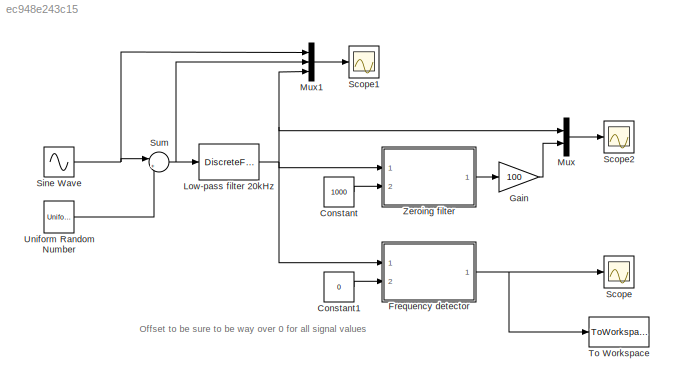
MODEL slx_ec948e243c15
KIND model
CONFIG AbsTol = auto
CONFIG EnableMultiTasking = off
CONFIG FixedStep = auto
CONFIG MaxStep = auto
CONFIG MinStep = auto
CONFIG RelTol = 1e-3
CONFIG SampleTimeConstraint = Unconstrained
CONFIG Solver = VariableStepAuto
CONFIG SolverName = VariableStepAuto
CONFIG StartTime = 0.0
CONFIG StopTime = 0.05
BLOCK [Constant] Constant
  Value = 1000
BLOCK [Constant] Constant1
  Value = 0
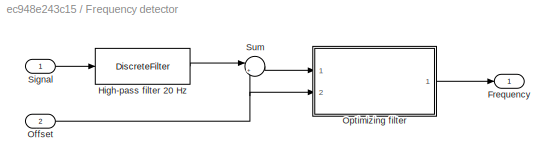
BLOCK [SubSystem] Frequency detector
  Ports = [2, 1]
  RequestExecContextInheritance = off
BLOCK [Outport] Frequency detector/Frequency
  IconDisplay = Port number
BLOCK [DiscreteFilter] Frequency detector/High-pass filter 20 Hz
  Denominator = [1 -0.9974]
  InputPortMap = u0
  Numerator = [0.9987 -0.9987]
  Ports = [1, 1]
  SampleTime = Ts
BLOCK [Inport] Frequency detector/Offset
  IconDisplay = Port number
  Port = 2
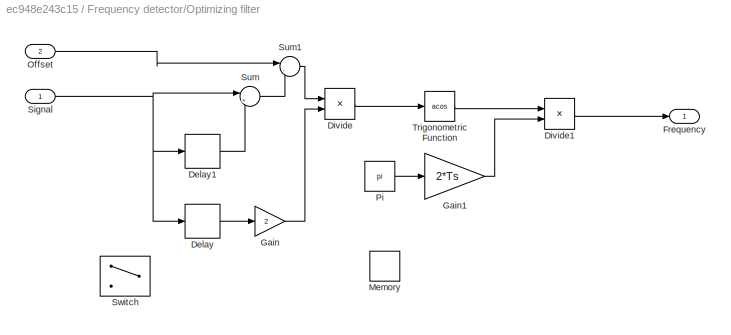
BLOCK [SubSystem] Frequency detector/Optimizing filter
  Ports = [2, 1]
  RequestExecContextInheritance = off
BLOCK [Delay] Frequency detector/Optimizing filter/Delay
  DelayLength = 1
  InputPortMap = u0
  Ports = [1, 1]
  SampleTime = Ts
BLOCK [Delay] Frequency detector/Optimizing filter/Delay1
  InputPortMap = u0
  Ports = [1, 1]
  SampleTime = Ts
BLOCK [Product] Frequency detector/Optimizing filter/Divide
  InputSameDT = off
  Inputs = */
  OutDataTypeStr = Inherit: Inherit via internal rule
  Ports = [2, 1]
  RndMeth = Floor
  SaturateOnIntegerOverflow = off
BLOCK [Product] Frequency detector/Optimizing filter/Divide1
  InputSameDT = off
  Inputs = */
  OutDataTypeStr = Inherit: Inherit via internal rule
  Ports = [2, 1]
  RndMeth = Floor
  SaturateOnIntegerOverflow = off
BLOCK [Outport] Frequency detector/Optimizing filter/Frequency
  IconDisplay = Port number
BLOCK [Gain] Frequency detector/Optimizing filter/Gain
  Gain = 2
  OutDataTypeStr = Inherit: Inherit via internal rule
  ParamDataTypeStr = Inherit: Inherit via internal rule
  SaturateOnIntegerOverflow = off
BLOCK [Gain] Frequency detector/Optimizing filter/Gain1
  Gain = 2*Ts
  OutDataTypeStr = Inherit: Inherit via internal rule
  ParamDataTypeStr = Inherit: Inherit via internal rule
  SaturateOnIntegerOverflow = off
BLOCK [Memory] Frequency detector/Optimizing filter/Memory
BLOCK [Inport] Frequency detector/Optimizing filter/Offset
  IconDisplay = Port number
  Port = 2
BLOCK [Constant] Frequency detector/Optimizing filter/Pi
  Value = pi
BLOCK [Inport] Frequency detector/Optimizing filter/Signal
  IconDisplay = Port number
BLOCK [Sum] Frequency detector/Optimizing filter/Sum
  IconShape = round
  InputSameDT = off
  Inputs = |++
  OutDataTypeStr = Inherit: Inherit via internal rule
  Ports = [2, 1]
  SaturateOnIntegerOverflow = off
BLOCK [Sum] Frequency detector/Optimizing filter/Sum1
  IconShape = round
  InputSameDT = off
  Inputs = |-+
  OutDataTypeStr = Inherit: Inherit via internal rule
  Ports = [2, 1]
  SaturateOnIntegerOverflow = off
BLOCK [Switch] Frequency detector/Optimizing filter/Switch
  Criteria = u2 > Threshold
  InputSameDT = off
  SaturateOnIntegerOverflow = off
BLOCK [Trigonometry] Frequency detector/Optimizing filter/Trigonometric Function
  Operator = acos
  Ports = [1, 1]
BLOCK [Inport] Frequency detector/Signal
  IconDisplay = Port number
BLOCK [Sum] Frequency detector/Sum
  IconShape = round
  InputSameDT = off
  Inputs = |++
  OutDataTypeStr = Inherit: Inherit via internal rule
  Ports = [2, 1]
  SaturateOnIntegerOverflow = off
BLOCK [Gain] Gain
  Gain = 100
  OutDataTypeStr = Inherit: Inherit via internal rule
  ParamDataTypeStr = Inherit: Inherit via internal rule
  SaturateOnIntegerOverflow = off
BLOCK [DiscreteFilter] Low-pass filter 20kHz
  Denominator = [1 1.2796 0.4776]
  InputPortMap = u0
  Numerator = [0.6893 1.3786 0.6893]
  Ports = [1, 1]
BLOCK [Mux] Mux
  DisplayOption = bar
  Inputs = 2
  Ports = [2, 1]
BLOCK [Mux] Mux1
  DisplayOption = bar
  Inputs = 3
  Ports = [3, 1]
BLOCK [Scope] Scope
  Floating = off
  NumInputPorts = 1
  Ports = [1]
  ScopeSpecificationString = Simulink.scopes.TimeScopeBlockCfg('CurrentConfiguration', extmgr.ConfigurationSet(extmgr.Configuration('Core','General UI',true),extmgr.Configuration('Core','Source UI',true),extmgr.Configuration('Sources','WiredSimulink',true),extmgr.Configuration('Visuals','Time Domain',true,'SerializedDisplays',{struct('MinYLimReal','-3000.00000','MaxYLimReal','27000.00000','YLabelReal','','MinYLimMag','  0.000...<+1467ch>
BLOCK [Scope] Scope1
  Floating = off
  NumInputPorts = 1
  Ports = [1]
  ScopeSpecificationString = Simulink.scopes.TimeScopeBlockCfg('CurrentConfiguration', extmgr.ConfigurationSet(extmgr.Configuration('Core','General UI',true),extmgr.Configuration('Core','Source UI',true),extmgr.Configuration('Sources','WiredSimulink',true,'DataLoggingVariableName','ScopeData1'),extmgr.Configuration('Visuals','Time Domain',true,'SerializedDisplays',{struct('MinYLimReal','0.1391','MaxYLimReal','3.7856','YLabelR...<+1463ch>
BLOCK [Scope] Scope2
  Floating = off
  NumInputPorts = 1
  Ports = [1]
  ScopeSpecificationString = Simulink.scopes.TimeScopeBlockCfg('CurrentConfiguration', extmgr.ConfigurationSet(extmgr.Configuration('Core','General UI',true),extmgr.Configuration('Core','Source UI',true),extmgr.Configuration('Sources','WiredSimulink',true,'DataLoggingVariableName','ScopeData2'),extmgr.Configuration('Visuals','Time Domain',true,'SerializedDisplays',{struct('MinYLimReal','-173.81463','MaxYLimReal','168.18559','...<+1477ch>
BLOCK [Sin] Sine Wave
  Bias = 2
  Frequency = 2*pi*1000
  Ports = [0, 1]
  SampleTime = 0
BLOCK [Sum] Sum
  IconShape = round
  InputSameDT = off
  Inputs = |++
  OutDataTypeStr = Inherit: Inherit via internal rule
  Ports = [2, 1]
  SaturateOnIntegerOverflow = off
BLOCK [ToWorkspace] To Workspace
  FixptAsFi = on
  MaxDataPoints = inf
  Ports = [1]
  SampleTime = -1
  Save2DSignal = 3-D array (concatenate along third dimension)
  SaveFormat = Timeseries
  VariableName = freq
BLOCK [UniformRandomNumber] Uniform Random Number
  Maximum = 0.1
  Minimum = -0.1
  SampleTime = Ts*3
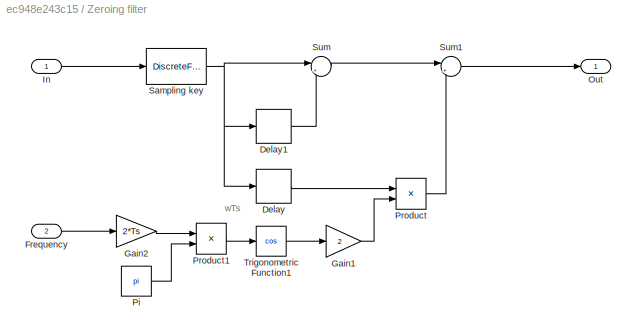
BLOCK [SubSystem] Zeroing filter
  Ports = [2, 1]
  RequestExecContextInheritance = off
BLOCK [Delay] Zeroing filter/Delay
  DelayLength = 1
  InputPortMap = u0
  Ports = [1, 1]
  SampleTime = Ts
BLOCK [Delay] Zeroing filter/Delay1
  InputPortMap = u0
  Ports = [1, 1]
  SampleTime = Ts
BLOCK [Inport] Zeroing filter/Frequency
  IconDisplay = Port number
  Port = 2
BLOCK [Gain] Zeroing filter/Gain1
  Gain = 2
  OutDataTypeStr = Inherit: Inherit via internal rule
  ParamDataTypeStr = Inherit: Inherit via internal rule
  SaturateOnIntegerOverflow = off
BLOCK [Gain] Zeroing filter/Gain2
  Gain = 2*Ts
  OutDataTypeStr = Inherit: Inherit via internal rule
  ParamDataTypeStr = Inherit: Inherit via internal rule
  SaturateOnIntegerOverflow = off
BLOCK [Inport] Zeroing filter/In
  IconDisplay = Port number
BLOCK [Outport] Zeroing filter/Out
  IconDisplay = Port number
BLOCK [Constant] Zeroing filter/Pi
  Value = pi
BLOCK [Product] Zeroing filter/Product
  InputSameDT = off
  OutDataTypeStr = Inherit: Inherit via internal rule
  Ports = [2, 1]
  RndMeth = Floor
  SaturateOnIntegerOverflow = off
BLOCK [Product] Zeroing filter/Product1
  InputSameDT = off
  OutDataTypeStr = Inherit: Inherit via internal rule
  Ports = [2, 1]
  RndMeth = Floor
  SaturateOnIntegerOverflow = off
BLOCK [DiscreteFilter] Zeroing filter/Sampling key
  Denominator = 1
  InputPortMap = u0
  Ports = [1, 1]
  SampleTime = Ts
BLOCK [Sum] Zeroing filter/Sum
  IconShape = round
  InputSameDT = off
  Inputs = |++
  OutDataTypeStr = Inherit: Inherit via internal rule
  Ports = [2, 1]
  SaturateOnIntegerOverflow = off
BLOCK [Sum] Zeroing filter/Sum1
  IconShape = round
  InputSameDT = off
  Inputs = |+-
  OutDataTypeStr = Inherit: Inherit via internal rule
  Ports = [2, 1]
  SaturateOnIntegerOverflow = off
BLOCK [Trigonometry] Zeroing filter/Trigonometric Function1
  Operator = cos
  Ports = [1, 1]
ANNOTATION (root): Offset to be sure to be way over 0 for all signal values
ANNOTATION Zeroing filter: wTs
LINE Constant1:1 -> Frequency detector:2
LINE Constant:1 -> Zeroing filter:2
LINE Frequency detector/High-pass filter 20 Hz:1 -> Frequency detector/Sum:1
NET Frequency detector/Offset:1 -> Frequency detector/Optimizing filter:2, Frequency detector/Sum:2
LINE Frequency detector/Optimizing filter/Delay1:1 -> Frequency detector/Optimizing filter/Sum:2
LINE Frequency detector/Optimizing filter/Delay:1 -> Frequency detector/Optimizing filter/Gain:1
LINE Frequency detector/Optimizing filter/Divide1:1 -> Frequency detector/Optimizing filter/Frequency:1
LINE Frequency detector/Optimizing filter/Divide:1 -> Frequency detector/Optimizing filter/Trigonometric Function:1
LINE Frequency detector/Optimizing filter/Gain1:1 -> Frequency detector/Optimizing filter/Divide1:2
LINE Frequency detector/Optimizing filter/Gain:1 -> Frequency detector/Optimizing filter/Divide:2
LINE Frequency detector/Optimizing filter/Offset:1 -> Frequency detector/Optimizing filter/Sum1:1
LINE Frequency detector/Optimizing filter/Pi:1 -> Frequency detector/Optimizing filter/Gain1:1
NET Frequency detector/Optimizing filter/Signal:1 -> Frequency detector/Optimizing filter/Delay1:1, Frequency detector/Optimizing filter/Delay:1, Frequency detector/Optimizing filter/Sum:1
LINE Frequency detector/Optimizing filter/Sum1:1 -> Frequency detector/Optimizing filter/Divide:1
LINE Frequency detector/Optimizing filter/Sum:1 -> Frequency detector/Optimizing filter/Sum1:2
LINE Frequency detector/Optimizing filter/Trigonometric Function:1 -> Frequency detector/Optimizing filter/Divide1:1
LINE Frequency detector/Optimizing filter:1 -> Frequency detector/Frequency:1
LINE Frequency detector/Signal:1 -> Frequency detector/High-pass filter 20 Hz:1
LINE Frequency detector/Sum:1 -> Frequency detector/Optimizing filter:1
NET Frequency detector:1 -> Scope:1, To Workspace:1
LINE Gain:1 -> Mux:2
NET Low-pass filter 20kHz:1 -> Frequency detector:1, Mux1:3, Mux:1, Zeroing filter:1
LINE Mux1:1 -> Scope1:1
LINE Mux:1 -> Scope2:1
NET Sine Wave:1 -> Mux1:1, Sum:1
NET Sum:1 -> Low-pass filter 20kHz:1, Mux1:2
LINE Uniform Random Number:1 -> Sum:2
LINE Zeroing filter/Delay1:1 -> Zeroing filter/Sum:2
LINE Zeroing filter/Delay:1 -> Zeroing filter/Product:1
LINE Zeroing filter/Frequency:1 -> Zeroing filter/Gain2:1
LINE Zeroing filter/Gain1:1 -> Zeroing filter/Product:2
LINE Zeroing filter/Gain2:1 -> Zeroing filter/Product1:1
LINE Zeroing filter/In:1 -> Zeroing filter/Sampling key:1
LINE Zeroing filter/Pi:1 -> Zeroing filter/Product1:2
LINE Zeroing filter/Product1:1 -> Zeroing filter/Trigonometric Function1:1
LINE Zeroing filter/Product:1 -> Zeroing filter/Sum1:2
NET Zeroing filter/Sampling key:1 -> Zeroing filter/Delay1:1, Zeroing filter/Delay:1, Zeroing filter/Sum:1
LINE Zeroing filter/Sum1:1 -> Zeroing filter/Out:1
LINE Zeroing filter/Sum:1 -> Zeroing filter/Sum1:1
LINE Zeroing filter/Trigonometric Function1:1 -> Zeroing filter/Gain1:1
LINE Zeroing filter:1 -> Gain:1
note: NET lines group one-source signal fan-out (src -> all destinations, sorted); 1:1 wires keep LINE
